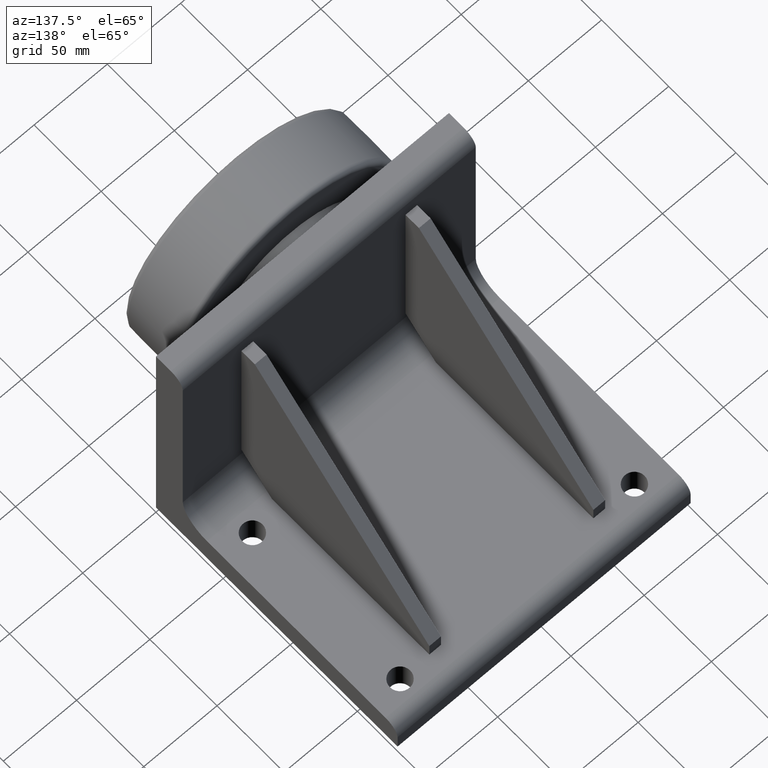
[diagram: clean part render]
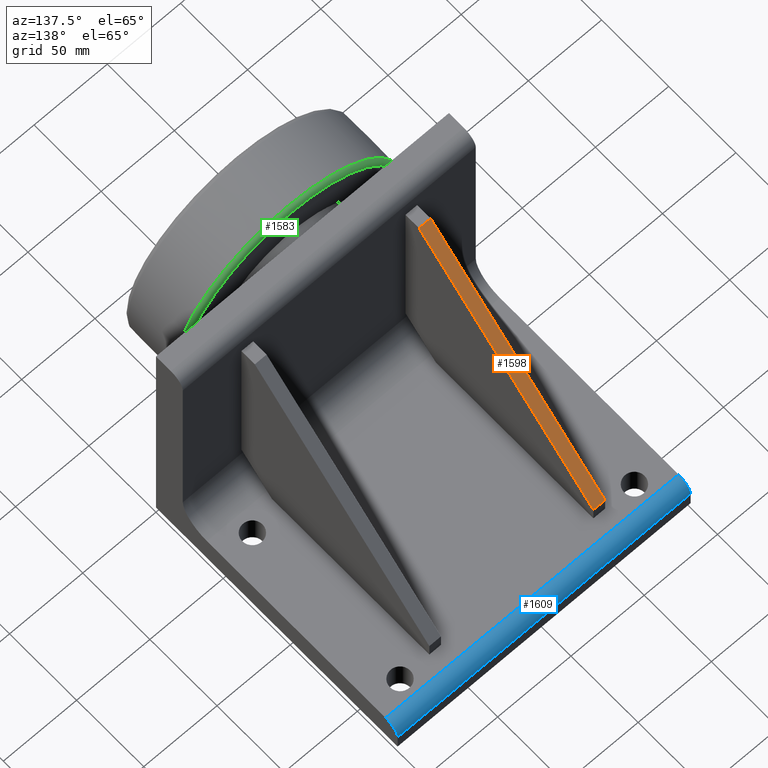
[diagram: same view with three faces highlighted in distinct colors, each labeled with its STEP entity id]
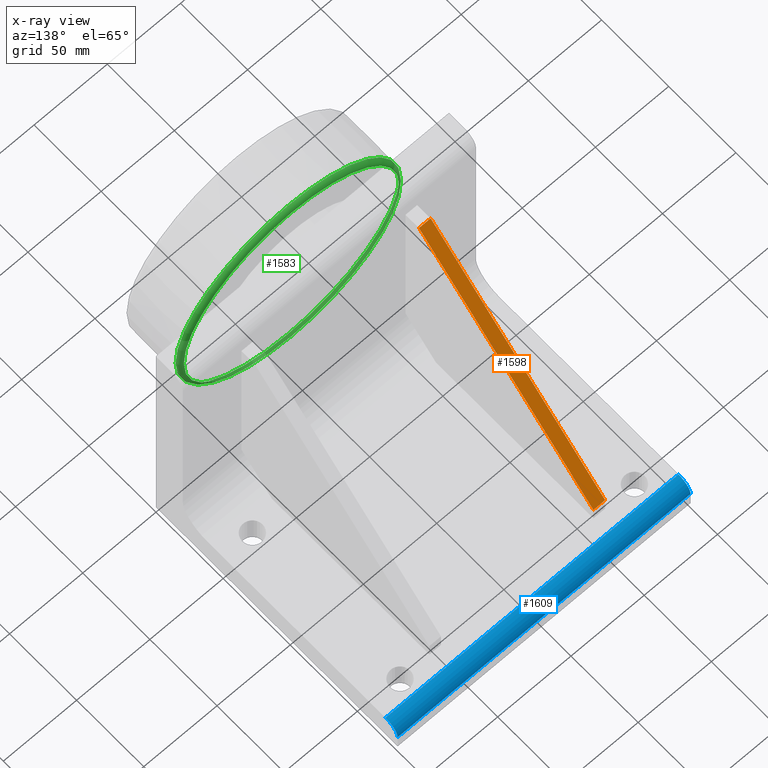
[diagram: x-ray of the same camera — body ghosted, the three highlighted faces saturated]
A machine part, auxiliary view with three faces highlighted in distinct colors.
The next image is the same camera in x-ray (body ghosted, the three faces saturated) — at least one of them is partly hidden behind the body in this view.
Their STEP definitions:

[orange] entity #1598 — the highlighted planar face has unit normal (0, 0.7071, 0.7071).
#198=FACE_OUTER_BOUND('',#292,.T.);
#292=EDGE_LOOP('',(#1275,#1276,#1277,#1278));
#451=LINE('',#2609,#601);
#454=LINE('',#2615,#604);
#455=LINE('',#2617,#605);
#456=LINE('',#2618,#606);
#601=VECTOR('',#2099,10.);
#604=VECTOR('',#2104,10.);
#605=VECTOR('',#2105,10.);
#606=VECTOR('',#2106,10.);
#750=VERTEX_POINT('',#2606);
#751=VERTEX_POINT('',#2608);
#753=VERTEX_POINT('',#2614);
#754=VERTEX_POINT('',#2616);
#949=EDGE_CURVE('',#751,#750,#451,.T.);
#952=EDGE_CURVE('',#750,#753,#454,.T.);
#953=EDGE_CURVE('',#754,#753,#455,.T.);
#954=EDGE_CURVE('',#751,#754,#456,.T.);
#1275=ORIENTED_EDGE('',*,*,#952,.T.);
#1276=ORIENTED_EDGE('',*,*,#953,.F.);
#1277=ORIENTED_EDGE('',*,*,#954,.F.);
#1278=ORIENTED_EDGE('',*,*,#949,.T.);
#1529=PLANE('',#1743);
#1598=ADVANCED_FACE('',(#198),#1529,.T.);
#1743=AXIS2_PLACEMENT_3D('',#2613,#2102,#2103);
#2099=DIRECTION('',(-1.,-1.85325733937074E-46,8.16594296420187E-32));
#2102=DIRECTION('center_axis',(5.77419364476971E-32,0.707106781186547,0.707106781186548));
#2103=DIRECTION('ref_axis',(1.,1.85325733937074E-46,-8.16594296420187E-32));
#2104=DIRECTION('',(5.77419364476973E-32,-0.707106781186548,0.707106781186547));
#2105=DIRECTION('',(-1.,-1.85325733937074E-46,8.16594296420187E-32));
#2106=DIRECTION('',(5.77419364476973E-32,-0.707106781186548,0.707106781186547));
#2606=CARTESIAN_POINT('',(40.,160.,30.));
#2608=CARTESIAN_POINT('',(48.,160.,30.));
#2609=CARTESIAN_POINT('',(48.,160.,30.));
#2613=CARTESIAN_POINT('Origin',(48.,160.,30.));
#2614=CARTESIAN_POINT('',(40.,29.9999999999999,160.));
#2615=CARTESIAN_POINT('',(40.,160.,30.));
#2616=CARTESIAN_POINT('',(48.,29.9999999999999,160.));
#2617=CARTESIAN_POINT('',(48.,29.9999999999999,160.));
#2618=CARTESIAN_POINT('',(48.,160.,30.));

[blue] entity #1609 — the highlighted cylindrical surface (edge-blend (fillet) strip) has radius 9 mm, axis along (1, 0, 0).
#45=CYLINDRICAL_SURFACE('',#1770,9.);
#129=CIRCLE('',#1769,9.);
#130=CIRCLE('',#1771,9.);
#209=FACE_OUTER_BOUND('',#303,.T.);
#303=EDGE_LOOP('',(#1332,#1333,#1334,#1335));
#476=LINE('',#2691,#626);
#477=LINE('',#2692,#627);
#626=VECTOR('',#2182,10.);
#627=VECTOR('',#2183,10.);
#775=VERTEX_POINT('',#2680);
#776=VERTEX_POINT('',#2682);
#778=VERTEX_POINT('',#2688);
#779=VERTEX_POINT('',#2689);
#987=EDGE_CURVE('',#776,#775,#129,.T.);
#990=EDGE_CURVE('',#778,#779,#130,.T.);
#991=EDGE_CURVE('',#779,#776,#476,.T.);
#992=EDGE_CURVE('',#775,#778,#477,.T.);
#1332=ORIENTED_EDGE('',*,*,#990,.T.);
#1333=ORIENTED_EDGE('',*,*,#991,.T.);
#1334=ORIENTED_EDGE('',*,*,#987,.T.);
#1335=ORIENTED_EDGE('',*,*,#992,.T.);
#1609=ADVANCED_FACE('',(#209),#45,.T.);
#1769=AXIS2_PLACEMENT_3D('',#2683,#2174,#2175);
#1770=AXIS2_PLACEMENT_3D('',#2687,#2178,#2179);
#1771=AXIS2_PLACEMENT_3D('',#2690,#2180,#2181);
#2174=DIRECTION('center_axis',(1.,0.,0.));
#2175=DIRECTION('ref_axis',(0.,0.707106781186547,0.707106781186548));
#2178=DIRECTION('center_axis',(1.,0.,0.));
#2179=DIRECTION('ref_axis',(0.,0.707106781186547,0.707106781186548));
#2180=DIRECTION('center_axis',(-1.,0.,0.));
#2181=DIRECTION('ref_axis',(0.,0.707106781186547,0.707106781186548));
#2182=DIRECTION('',(-1.,0.,0.));
#2183=DIRECTION('',(1.,0.,0.));
#2680=CARTESIAN_POINT('',(0.,171.,20.));
#2682=CARTESIAN_POINT('',(0.,180.,11.));
#2683=CARTESIAN_POINT('Origin',(0.,171.,11.));
#2687=CARTESIAN_POINT('Origin',(0.,171.,11.));
#2688=CARTESIAN_POINT('',(200.,171.,20.));
#2689=CARTESIAN_POINT('',(200.,180.,11.));
#2690=CARTESIAN_POINT('Origin',(200.,171.,11.));
#2691=CARTESIAN_POINT('',(0.,180.,11.));
#2692=CARTESIAN_POINT('',(0.,171.,20.));

[green] entity #1583 — the highlighted toroidal blend (fillet) surface has major radius 73.423 mm and minor (blend) radius 3 mm.
#32=TOROIDAL_SURFACE('',#1718,73.4229906040792,3.);
#90=CIRCLE('',#1702,73.4229906040792);
#91=CIRCLE('',#1703,73.4229906040792);
#100=CIRCLE('',#1713,76.422736076232);
#101=CIRCLE('',#1714,76.422736076232);
#104=CIRCLE('',#1719,3.);
#183=FACE_OUTER_BOUND('',#274,.T.);
#274=EDGE_LOOP('',(#1206,#1207,#1208,#1209,#1210,#1211));
#708=VERTEX_POINT('',#2466);
#709=VERTEX_POINT('',#2467);
#716=VERTEX_POINT('',#2511);
#717=VERTEX_POINT('',#2513);
#894=EDGE_CURVE('',#708,#709,#90,.T.);
#895=EDGE_CURVE('',#709,#708,#91,.T.);
#904=EDGE_CURVE('',#717,#716,#100,.T.);
#905=EDGE_CURVE('',#716,#717,#101,.T.);
#909=EDGE_CURVE('',#716,#709,#104,.T.);
#1206=ORIENTED_EDGE('',*,*,#904,.T.);
#1207=ORIENTED_EDGE('',*,*,#909,.T.);
#1208=ORIENTED_EDGE('',*,*,#895,.T.);
#1209=ORIENTED_EDGE('',*,*,#894,.T.);
#1210=ORIENTED_EDGE('',*,*,#909,.F.);
#1211=ORIENTED_EDGE('',*,*,#905,.T.);
#1583=ADVANCED_FACE('',(#183),#32,.T.);
#1702=AXIS2_PLACEMENT_3D('',#2468,#1986,#1987);
#1703=AXIS2_PLACEMENT_3D('',#2469,#1988,#1989);
#1713=AXIS2_PLACEMENT_3D('',#2514,#2008,#2009);
#1714=AXIS2_PLACEMENT_3D('',#2515,#2010,#2011);
#1718=AXIS2_PLACEMENT_3D('',#2522,#2019,#2020);
#1719=AXIS2_PLACEMENT_3D('',#2523,#2021,#2022);
#1986=DIRECTION('center_axis',(-2.42488790685022E-16,-1.,6.88904874983737E-17));
#1987=DIRECTION('ref_axis',(1.,-2.42488790685022E-16,2.93868954319698E-16));
#1988=DIRECTION('center_axis',(-2.42488790685022E-16,-1.,6.88904874983737E-17));
#1989=DIRECTION('ref_axis',(1.,-2.42488790685022E-16,2.93868954319698E-16));
#2008=DIRECTION('center_axis',(2.42488790685022E-16,1.,-6.88904874983737E-17));
#2009=DIRECTION('ref_axis',(1.,-2.36243244669676E-16,2.93868954319699E-16));
#2010=DIRECTION('center_axis',(2.42488790685022E-16,1.,-6.88904874983737E-17));
#2011=DIRECTION('ref_axis',(1.,-2.36243244669676E-16,2.93868954319699E-16));
#2019=DIRECTION('center_axis',(-2.42488790685022E-16,-1.,6.88904874983737E-17));
#2020=DIRECTION('ref_axis',(-3.71899989855761E-16,6.97312480979552E-17,
1.));
#2021=DIRECTION('center_axis',(1.,-2.42488790685022E-16,4.64874987319702E-16));
#2022=DIRECTION('ref_axis',(4.64874987319702E-16,-5.81093734149627E-17,
-1.));
#2466=CARTESIAN_POINT('',(26.5770093959208,-8.2,120.));
#2467=CARTESIAN_POINT('',(100.,-8.20000000000002,46.5770093959208));
#2468=CARTESIAN_POINT('Origin',(100.,-8.20000000000001,120.));
#2469=CARTESIAN_POINT('Origin',(100.,-8.20000000000001,120.));
#2511=CARTESIAN_POINT('',(100.,-11.1609218436874,43.5772639237681));
#2513=CARTESIAN_POINT('',(23.5772639237681,-11.1609218436874,120.));
#2514=CARTESIAN_POINT('Origin',(100.,-11.1609218436874,120.));
#2515=CARTESIAN_POINT('Origin',(100.,-11.1609218436874,120.));
#2522=CARTESIAN_POINT('Origin',(100.,-11.2,120.));
#2523=CARTESIAN_POINT('Origin',(100.,-11.2,46.5770093959208));